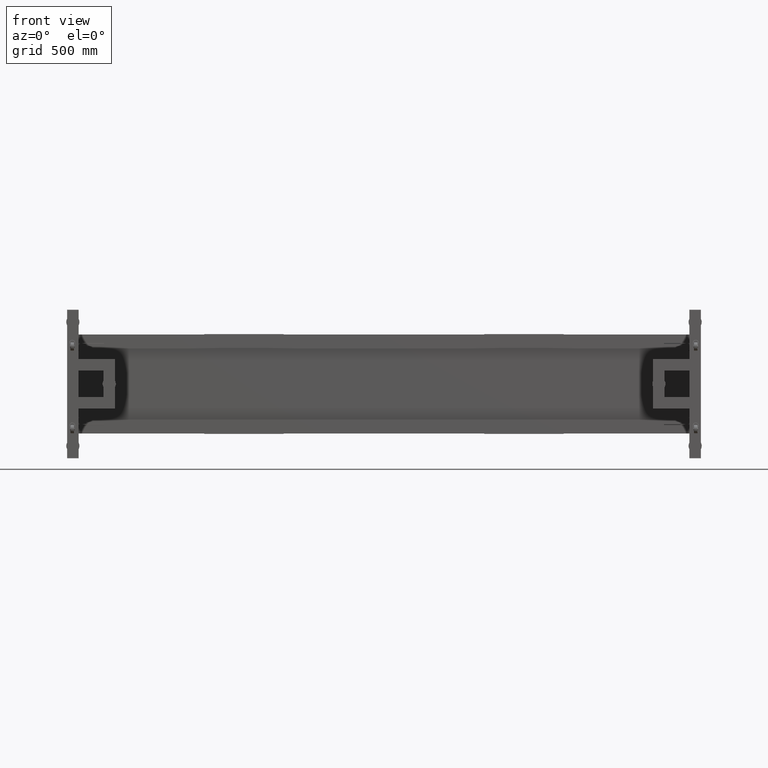
[diagram: clean part render]
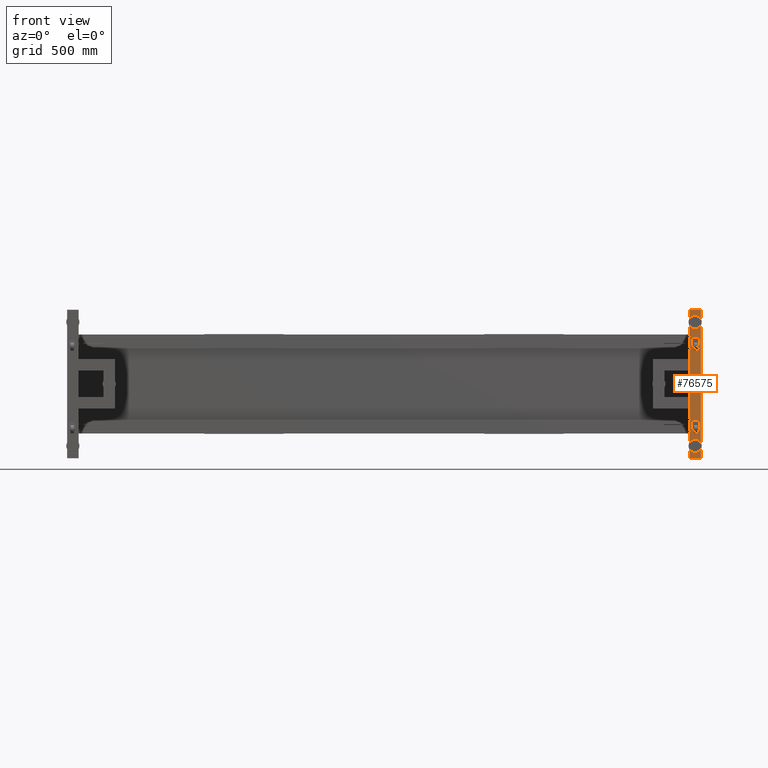
[diagram: same view with one face highlighted and labeled with its STEP entity id]
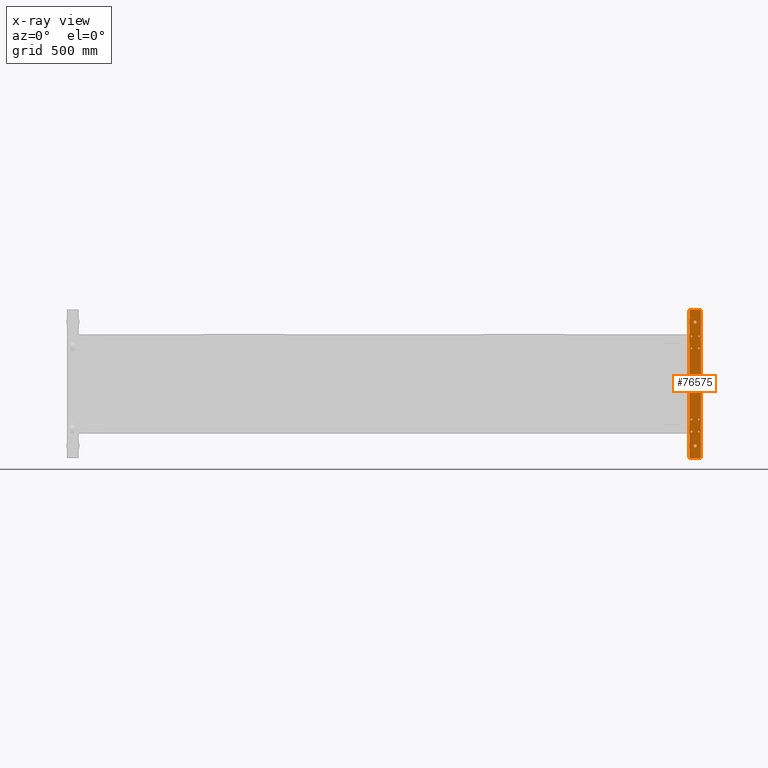
[diagram: x-ray of the same camera — body ghosted, the highlighted face saturated]
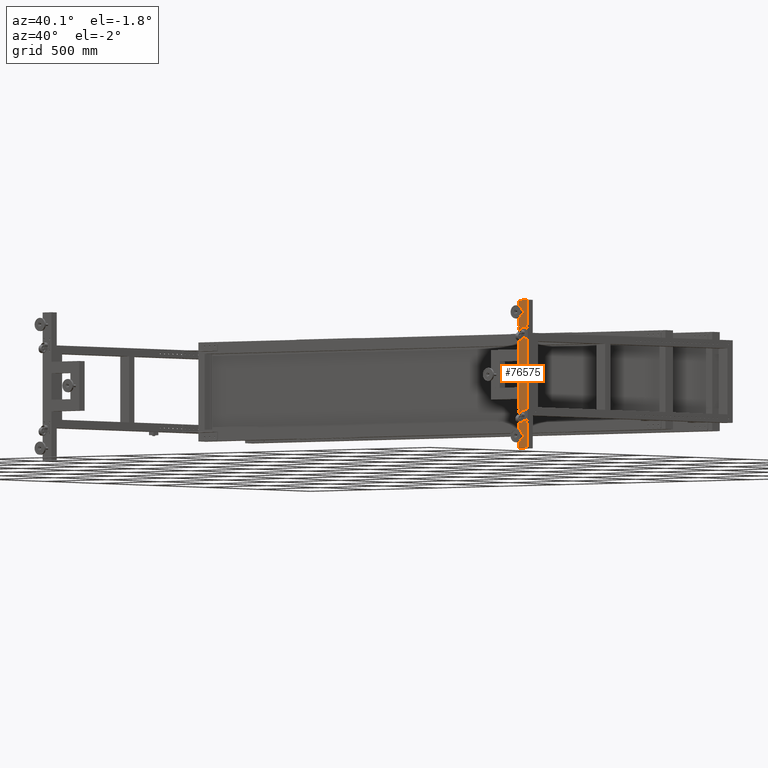
[diagram: same view with one face highlighted and labeled with its STEP entity id]
A machine part, front view. The second image highlights one B-rep face of the part: STEP entity #76575.
The next image is the same camera in x-ray: the body ghosted, the highlighted face saturated — about 0% of this face is hidden behind the body in this view.
A second angle (auxiliary view) of the same face is appended — the face is thin or edge-on in the first view.
In plain terms, the highlighted planar face has unit normal (0, -1, -0).
Its self-contained STEP definition (entity closure, byte-faithful):
#39 = CARTESIAN_POINT ( 'NONE',  ( 2444.327512562815173, -894.5589195979874830, -211.0000000000000853 ) ) ;
#70 = CARTESIAN_POINT ( 'NONE',  ( 2444.327512562815173, -894.5589195979874830, 220.9999999999999432 ) ) ;
#1530 = DIRECTION ( 'NONE',  ( 0.000000000000000000, 0.000000000000000000, 1.000000000000000000 ) ) ;
#1795 = CARTESIAN_POINT ( 'NONE',  ( 2444.327512562815173, -894.5589195979874830, -221.0000000000000853 ) ) ;
#2034 = DIRECTION ( 'NONE',  ( -2.216956027235894459E-16, 1.000000000000000000, -0.000000000000000000 ) ) ;
#2475 = EDGE_CURVE ( 'NONE', #28473, #42683, #34996, .T. ) ;
#2591 = CARTESIAN_POINT ( 'NONE',  ( 2489.327512562815627, -894.5589195979874830, -211.0000000000000853 ) ) ;
#2806 = ORIENTED_EDGE ( 'NONE', *, *, #3545, .T. ) ;
#2835 = VERTEX_POINT ( 'NONE', #44030 ) ;
#3024 = CARTESIAN_POINT ( 'NONE',  ( 2444.327512562815173, -894.5589195979874830, 288.9999999999999432 ) ) ;
#3078 = CARTESIAN_POINT ( 'NONE',  ( 2466.827512562815627, -894.5589195979874830, -375.0000000000000000 ) ) ;
#3545 = EDGE_CURVE ( 'NONE', #40839, #2835, #68035, .T. ) ;
#3566 = FACE_BOUND ( 'NONE', #13975, .T. ) ;
#4040 = CARTESIAN_POINT ( 'NONE',  ( 2444.327512562815173, -894.5589195979874830, 215.9999999999999432 ) ) ;
#4541 = DIRECTION ( 'NONE',  ( 0.000000000000000000, 0.000000000000000000, 1.000000000000000000 ) ) ;
#4797 = AXIS2_PLACEMENT_3D ( 'NONE', #29555, #49198, #17312 ) ;
#5035 = CARTESIAN_POINT ( 'NONE',  ( 2444.327512562815173, -894.5589195979874830, 283.9999999999999432 ) ) ;
#5446 = DIRECTION ( 'NONE',  ( -1.000000000000000000, -2.216956027235894459E-16, 0.000000000000000000 ) ) ;
#5572 = EDGE_LOOP ( 'NONE', ( #38175, #45359 ) ) ;
#5986 = CARTESIAN_POINT ( 'NONE',  ( 2501.827512562815173, -894.5589195979874830, -448.0000000000000568 ) ) ;
#6406 = AXIS2_PLACEMENT_3D ( 'NONE', #42576, #47517, #4541 ) ;
#6608 = CARTESIAN_POINT ( 'NONE',  ( 2431.827512562815627, -894.5589195979874830, -448.0000000000000568 ) ) ;
#8223 = VERTEX_POINT ( 'NONE', #80447 ) ;
#8230 = ORIENTED_EDGE ( 'NONE', *, *, #8757, .T. ) ;
#8286 = EDGE_CURVE ( 'NONE', #57817, #73506, #42556, .T. ) ;
#8725 = AXIS2_PLACEMENT_3D ( 'NONE', #3024, #34489, #78701 ) ;
#8757 = EDGE_CURVE ( 'NONE', #27176, #13733, #64636, .T. ) ;
#8892 = DIRECTION ( 'NONE',  ( 2.216956027235894459E-16, -1.000000000000000000, -0.000000000000000000 ) ) ;
#8994 = CARTESIAN_POINT ( 'NONE',  ( 2489.327512562815627, -894.5589195979874830, 288.9999999999999432 ) ) ;
#9078 = CIRCLE ( 'NONE', #48254, 5.000000000000004441 ) ;
#9327 = DIRECTION ( 'NONE',  ( -2.216956027235894459E-16, 1.000000000000000000, -0.000000000000000000 ) ) ;
#10235 = CIRCLE ( 'NONE', #55941, 5.000000000000004441 ) ;
#10353 = ORIENTED_EDGE ( 'NONE', *, *, #42674, .T. ) ;
#11193 = AXIS2_PLACEMENT_3D ( 'NONE', #68562, #12510, #55101 ) ;
#11590 = DIRECTION ( 'NONE',  ( 0.000000000000000000, 0.000000000000000000, -1.000000000000000000 ) ) ;
#11607 = DIRECTION ( 'NONE',  ( -2.216956027235894459E-16, 1.000000000000000000, -0.000000000000000000 ) ) ;
#12118 = EDGE_CURVE ( 'NONE', #22732, #8223, #52184, .T. ) ;
#12221 = DIRECTION ( 'NONE',  ( 0.000000000000000000, 0.000000000000000000, -1.000000000000000000 ) ) ;
#12268 = CARTESIAN_POINT ( 'NONE',  ( 2466.827512562815627, -894.5589195979874830, -366.0000000000000000 ) ) ;
#12438 = EDGE_CURVE ( 'NONE', #42683, #28473, #9078, .T. ) ;
#12510 = DIRECTION ( 'NONE',  ( -2.216956027235894459E-16, 1.000000000000000000, -0.000000000000000000 ) ) ;
#12577 = EDGE_CURVE ( 'NONE', #39934, #57526, #61385, .T. ) ;
#12721 = CARTESIAN_POINT ( 'NONE',  ( 2489.327512562815627, -894.5589195979874830, -289.0000000000000568 ) ) ;
#12804 = CARTESIAN_POINT ( 'NONE',  ( 2444.327512562815173, -894.5589195979874830, -216.0000000000000853 ) ) ;
#13733 = VERTEX_POINT ( 'NONE', #55976 ) ;
#13975 = EDGE_LOOP ( 'NONE', ( #30143, #62651 ) ) ;
#14671 = DIRECTION ( 'NONE',  ( 0.000000000000000000, 0.000000000000000000, 1.000000000000000000 ) ) ;
#14829 = AXIS2_PLACEMENT_3D ( 'NONE', #39191, #9327, #14671 ) ;
#14946 = LINE ( 'NONE', #15761, #69917 ) ;
#15586 = ORIENTED_EDGE ( 'NONE', *, *, #61387, .T. ) ;
#15746 = AXIS2_PLACEMENT_3D ( 'NONE', #74177, #23477, #11590 ) ;
#15761 = CARTESIAN_POINT ( 'NONE',  ( 2501.827512562815173, -894.5589195979874830, -448.0000000000000568 ) ) ;
#15774 = DIRECTION ( 'NONE',  ( -2.216956027235894459E-16, 1.000000000000000000, -0.000000000000000000 ) ) ;
#16331 = DIRECTION ( 'NONE',  ( 0.000000000000000000, 0.000000000000000000, 1.000000000000000000 ) ) ;
#16738 = AXIS2_PLACEMENT_3D ( 'NONE', #69095, #57225, #12221 ) ;
#17312 = DIRECTION ( 'NONE',  ( 0.000000000000000000, 0.000000000000000000, -1.000000000000000000 ) ) ;
#17751 = CARTESIAN_POINT ( 'NONE',  ( 2489.327512562815627, -894.5589195979874830, 283.9999999999999432 ) ) ;
#18068 = AXIS2_PLACEMENT_3D ( 'NONE', #76379, #71891, #1530 ) ;
#19030 = ORIENTED_EDGE ( 'NONE', *, *, #61449, .T. ) ;
#19190 = CIRCLE ( 'NONE', #4797, 9.000000000000007105 ) ;
#19504 = ORIENTED_EDGE ( 'NONE', *, *, #80909, .T. ) ;
#20697 = DIRECTION ( 'NONE',  ( 0.000000000000000000, 0.000000000000000000, 1.000000000000000000 ) ) ;
#21641 = ORIENTED_EDGE ( 'NONE', *, *, #12438, .T. ) ;
#22712 = ORIENTED_EDGE ( 'NONE', *, *, #72568, .T. ) ;
#22732 = VERTEX_POINT ( 'NONE', #12268 ) ;
#23477 = DIRECTION ( 'NONE',  ( -2.216956027235894459E-16, 1.000000000000000000, -0.000000000000000000 ) ) ;
#24350 = CARTESIAN_POINT ( 'NONE',  ( 2444.327512562815173, -894.5589195979874830, -294.0000000000000568 ) ) ;
#24855 = AXIS2_PLACEMENT_3D ( 'NONE', #37562, #68671, #31012 ) ;
#25941 = ORIENTED_EDGE ( 'NONE', *, *, #2475, .T. ) ;
#26807 = EDGE_LOOP ( 'NONE', ( #21641, #25941 ) ) ;
#26971 = CARTESIAN_POINT ( 'NONE',  ( 2489.327512562815627, -894.5589195979874830, -294.0000000000000568 ) ) ;
#27176 = VERTEX_POINT ( 'NONE', #77451 ) ;
#27307 = DIRECTION ( 'NONE',  ( -0.000000000000000000, 0.000000000000000000, -1.000000000000000000 ) ) ;
#27410 = DIRECTION ( 'NONE',  ( 0.000000000000000000, 0.000000000000000000, -1.000000000000000000 ) ) ;
#27709 = FACE_BOUND ( 'NONE', #65851, .T. ) ;
#28429 = DIRECTION ( 'NONE',  ( -2.216956027235894459E-16, 1.000000000000000000, -0.000000000000000000 ) ) ;
#28473 = VERTEX_POINT ( 'NONE', #33768 ) ;
#28515 = FACE_BOUND ( 'NONE', #5572, .T. ) ;
#28697 = AXIS2_PLACEMENT_3D ( 'NONE', #72384, #36328, #16331 ) ;
#29295 = VERTEX_POINT ( 'NONE', #5986 ) ;
#29555 = CARTESIAN_POINT ( 'NONE',  ( 2466.827512562815627, -894.5589195979874830, 374.9999999999999432 ) ) ;
#29912 = LINE ( 'NONE', #47153, #40123 ) ;
#30143 = ORIENTED_EDGE ( 'NONE', *, *, #56376, .T. ) ;
#30323 = VERTEX_POINT ( 'NONE', #63001 ) ;
#31012 = DIRECTION ( 'NONE',  ( 0.000000000000000000, 0.000000000000000000, 1.000000000000000000 ) ) ;
#31563 = CIRCLE ( 'NONE', #38110, 5.000000000000004441 ) ;
#32195 = CARTESIAN_POINT ( 'NONE',  ( 2489.327512562815627, -894.5589195979874830, -216.0000000000000853 ) ) ;
#32752 = AXIS2_PLACEMENT_3D ( 'NONE', #71831, #15774, #59538 ) ;
#32997 = FACE_BOUND ( 'NONE', #35489, .T. ) ;
#33319 = DIRECTION ( 'NONE',  ( 0.000000000000000000, 0.000000000000000000, 1.000000000000000000 ) ) ;
#33412 = FACE_BOUND ( 'NONE', #36689, .T. ) ;
#33768 = CARTESIAN_POINT ( 'NONE',  ( 2489.327512562815627, -894.5589195979874830, 293.9999999999999432 ) ) ;
#33903 = DIRECTION ( 'NONE',  ( 0.000000000000000000, 0.000000000000000000, -1.000000000000000000 ) ) ;
#33984 = AXIS2_PLACEMENT_3D ( 'NONE', #12721, #51192, #63852 ) ;
#34235 = FACE_BOUND ( 'NONE', #39181, .T. ) ;
#34489 = DIRECTION ( 'NONE',  ( -2.216956027235894459E-16, 1.000000000000000000, -0.000000000000000000 ) ) ;
#34996 = CIRCLE ( 'NONE', #16738, 5.000000000000004441 ) ;
#35130 = EDGE_CURVE ( 'NONE', #2835, #40839, #59649, .T. ) ;
#35228 = CARTESIAN_POINT ( 'NONE',  ( 2489.327512562815627, -894.5589195979874830, 220.9999999999999432 ) ) ;
#35247 = DIRECTION ( 'NONE',  ( -1.000000000000000000, -2.216956027235894459E-16, 0.000000000000000000 ) ) ;
#35489 = EDGE_LOOP ( 'NONE', ( #19504, #22712 ) ) ;
#35665 = VERTEX_POINT ( 'NONE', #5035 ) ;
#35667 = ORIENTED_EDGE ( 'NONE', *, *, #8286, .T. ) ;
#36328 = DIRECTION ( 'NONE',  ( -2.216956027235894459E-16, 1.000000000000000000, -0.000000000000000000 ) ) ;
#36531 = DIRECTION ( 'NONE',  ( 0.000000000000000000, 0.000000000000000000, 1.000000000000000000 ) ) ;
#36689 = EDGE_LOOP ( 'NONE', ( #40137, #15586 ) ) ;
#37562 = CARTESIAN_POINT ( 'NONE',  ( 2489.327512562815627, -894.5589195979874830, -289.0000000000000568 ) ) ;
#37726 = CARTESIAN_POINT ( 'NONE',  ( 2444.327512562815173, -894.5589195979874830, 210.9999999999999716 ) ) ;
#38110 = AXIS2_PLACEMENT_3D ( 'NONE', #32195, #80510, #75982 ) ;
#38175 = ORIENTED_EDGE ( 'NONE', *, *, #51402, .T. ) ;
#39181 = EDGE_LOOP ( 'NONE', ( #8230, #19030 ) ) ;
#39191 = CARTESIAN_POINT ( 'NONE',  ( 2444.327512562815173, -894.5589195979874830, -289.0000000000000568 ) ) ;
#39934 = VERTEX_POINT ( 'NONE', #64105 ) ;
#40123 = VECTOR ( 'NONE', #35247, 1000.000000000000000 ) ;
#40137 = ORIENTED_EDGE ( 'NONE', *, *, #69961, .T. ) ;
#40393 = FACE_BOUND ( 'NONE', #74412, .T. ) ;
#40839 = VERTEX_POINT ( 'NONE', #35228 ) ;
#40933 = CIRCLE ( 'NONE', #14829, 5.000000000000004441 ) ;
#41276 = AXIS2_PLACEMENT_3D ( 'NONE', #51865, #8892, #27307 ) ;
#42185 = VERTEX_POINT ( 'NONE', #53486 ) ;
#42368 = AXIS2_PLACEMENT_3D ( 'NONE', #64263, #71230, #52426 ) ;
#42556 = CIRCLE ( 'NONE', #11193, 5.000000000000004441 ) ;
#42576 = CARTESIAN_POINT ( 'NONE',  ( 2466.827512562815627, -894.5589195979874830, -375.0000000000000000 ) ) ;
#42674 = EDGE_CURVE ( 'NONE', #62860, #72831, #72980, .T. ) ;
#42683 = VERTEX_POINT ( 'NONE', #17751 ) ;
#43975 = CIRCLE ( 'NONE', #8725, 5.000000000000004441 ) ;
#44030 = CARTESIAN_POINT ( 'NONE',  ( 2489.327512562815627, -894.5589195979874830, 210.9999999999999716 ) ) ;
#44411 = CARTESIAN_POINT ( 'NONE',  ( 2431.827512562815627, -894.5589195979874830, -448.0000000000000568 ) ) ;
#45359 = ORIENTED_EDGE ( 'NONE', *, *, #12118, .T. ) ;
#45369 = DIRECTION ( 'NONE',  ( -2.216956027235894459E-16, 1.000000000000000000, -0.000000000000000000 ) ) ;
#46274 = EDGE_CURVE ( 'NONE', #73506, #57817, #64504, .T. ) ;
#47153 = CARTESIAN_POINT ( 'NONE',  ( 2501.827512562815173, -894.5589195979874830, -448.0000000000000568 ) ) ;
#47517 = DIRECTION ( 'NONE',  ( -2.216956027235894459E-16, 1.000000000000000000, -0.000000000000000000 ) ) ;
#48254 = AXIS2_PLACEMENT_3D ( 'NONE', #8994, #2034, #27410 ) ;
#48589 = VECTOR ( 'NONE', #5446, 1000.000000000000000 ) ;
#48722 = CARTESIAN_POINT ( 'NONE',  ( 2501.827512562815173, -894.5589195979874830, 447.9999999999999432 ) ) ;
#48832 = VECTOR ( 'NONE', #56523, 1000.000000000000000 ) ;
#48925 = EDGE_CURVE ( 'NONE', #30323, #60323, #70326, .T. ) ;
#49198 = DIRECTION ( 'NONE',  ( -2.216956027235894459E-16, 1.000000000000000000, -0.000000000000000000 ) ) ;
#51192 = DIRECTION ( 'NONE',  ( -2.216956027235894459E-16, 1.000000000000000000, -0.000000000000000000 ) ) ;
#51402 = EDGE_CURVE ( 'NONE', #8223, #22732, #71799, .T. ) ;
#51805 = CARTESIAN_POINT ( 'NONE',  ( 2431.827512562815627, -894.5589195979874830, 447.9999999999999432 ) ) ;
#51865 = CARTESIAN_POINT ( 'NONE',  ( 2501.827512562815173, -894.5589195979874830, -448.0000000000000568 ) ) ;
#52152 = EDGE_CURVE ( 'NONE', #78971, #63176, #58830, .T. ) ;
#52184 = CIRCLE ( 'NONE', #6406, 9.000000000000007105 ) ;
#52426 = DIRECTION ( 'NONE',  ( 0.000000000000000000, 0.000000000000000000, -1.000000000000000000 ) ) ;
#52445 = ORIENTED_EDGE ( 'NONE', *, *, #67343, .T. ) ;
#52496 = EDGE_CURVE ( 'NONE', #63176, #78971, #60181, .T. ) ;
#52812 = CARTESIAN_POINT ( 'NONE',  ( 2489.327512562815627, -894.5589195979874830, -284.0000000000000568 ) ) ;
#53486 = CARTESIAN_POINT ( 'NONE',  ( 2444.327512562815173, -894.5589195979874830, 293.9999999999999432 ) ) ;
#53521 = AXIS2_PLACEMENT_3D ( 'NONE', #3078, #28429, #33319 ) ;
#53864 = EDGE_LOOP ( 'NONE', ( #67774, #2806 ) ) ;
#53959 = DIRECTION ( 'NONE',  ( 0.000000000000000000, 0.000000000000000000, -1.000000000000000000 ) ) ;
#53989 = CIRCLE ( 'NONE', #69620, 5.000000000000004441 ) ;
#55101 = DIRECTION ( 'NONE',  ( 0.000000000000000000, 0.000000000000000000, -1.000000000000000000 ) ) ;
#55887 = VERTEX_POINT ( 'NONE', #39 ) ;
#55941 = AXIS2_PLACEMENT_3D ( 'NONE', #12804, #11607, #36531 ) ;
#55976 = CARTESIAN_POINT ( 'NONE',  ( 2466.827512562815627, -894.5589195979874830, 383.9999999999999432 ) ) ;
#56125 = LINE ( 'NONE', #6608, #48832 ) ;
#56376 = EDGE_CURVE ( 'NONE', #57526, #39934, #40933, .T. ) ;
#56523 = DIRECTION ( 'NONE',  ( 0.000000000000000000, 0.000000000000000000, 1.000000000000000000 ) ) ;
#57225 = DIRECTION ( 'NONE',  ( -2.216956027235894459E-16, 1.000000000000000000, -0.000000000000000000 ) ) ;
#57526 = VERTEX_POINT ( 'NONE', #24350 ) ;
#57817 = VERTEX_POINT ( 'NONE', #37726 ) ;
#57832 = ORIENTED_EDGE ( 'NONE', *, *, #73550, .F. ) ;
#58366 = ORIENTED_EDGE ( 'NONE', *, *, #46274, .T. ) ;
#58830 = CIRCLE ( 'NONE', #33984, 5.000000000000004441 ) ;
#59222 = FACE_OUTER_BOUND ( 'NONE', #62935, .T. ) ;
#59329 = AXIS2_PLACEMENT_3D ( 'NONE', #4040, #78111, #53959 ) ;
#59538 = DIRECTION ( 'NONE',  ( 0.000000000000000000, 0.000000000000000000, -1.000000000000000000 ) ) ;
#59649 = CIRCLE ( 'NONE', #67517, 5.000000000000004441 ) ;
#59742 = VERTEX_POINT ( 'NONE', #44411 ) ;
#59811 = EDGE_CURVE ( 'NONE', #29295, #62860, #14946, .T. ) ;
#60135 = CIRCLE ( 'NONE', #15746, 5.000000000000004441 ) ;
#60181 = CIRCLE ( 'NONE', #24855, 5.000000000000004441 ) ;
#60323 = VERTEX_POINT ( 'NONE', #2591 ) ;
#61335 = VERTEX_POINT ( 'NONE', #1795 ) ;
#61385 = CIRCLE ( 'NONE', #28697, 5.000000000000004441 ) ;
#61387 = EDGE_CURVE ( 'NONE', #42185, #35665, #43975, .T. ) ;
#61449 = EDGE_CURVE ( 'NONE', #13733, #27176, #19190, .T. ) ;
#61503 = CARTESIAN_POINT ( 'NONE',  ( 2501.827512562815173, -894.5589195979874830, 447.9999999999999432 ) ) ;
#62651 = ORIENTED_EDGE ( 'NONE', *, *, #12577, .T. ) ;
#62655 = EDGE_LOOP ( 'NONE', ( #80441, #52445 ) ) ;
#62860 = VERTEX_POINT ( 'NONE', #48722 ) ;
#62935 = EDGE_LOOP ( 'NONE', ( #10353, #57832, #78620, #74605 ) ) ;
#63001 = CARTESIAN_POINT ( 'NONE',  ( 2489.327512562815627, -894.5589195979874830, -221.0000000000000853 ) ) ;
#63176 = VERTEX_POINT ( 'NONE', #26971 ) ;
#63852 = DIRECTION ( 'NONE',  ( 0.000000000000000000, 0.000000000000000000, 1.000000000000000000 ) ) ;
#64105 = CARTESIAN_POINT ( 'NONE',  ( 2444.327512562815173, -894.5589195979874830, -284.0000000000000568 ) ) ;
#64128 = FACE_BOUND ( 'NONE', #26807, .T. ) ;
#64263 = CARTESIAN_POINT ( 'NONE',  ( 2466.827512562815627, -894.5589195979874830, 374.9999999999999432 ) ) ;
#64504 = CIRCLE ( 'NONE', #59329, 5.000000000000004441 ) ;
#64636 = CIRCLE ( 'NONE', #42368, 9.000000000000007105 ) ;
#64935 = PLANE ( 'NONE',  #41276 ) ;
#65010 = CARTESIAN_POINT ( 'NONE',  ( 2489.327512562815627, -894.5589195979874830, 215.9999999999999432 ) ) ;
#65741 = FACE_BOUND ( 'NONE', #53864, .T. ) ;
#65851 = EDGE_LOOP ( 'NONE', ( #35667, #58366 ) ) ;
#67343 = EDGE_CURVE ( 'NONE', #60323, #30323, #31563, .T. ) ;
#67517 = AXIS2_PLACEMENT_3D ( 'NONE', #65010, #45369, #33903 ) ;
#67774 = ORIENTED_EDGE ( 'NONE', *, *, #35130, .T. ) ;
#67786 = CARTESIAN_POINT ( 'NONE',  ( 2444.327512562815173, -894.5589195979874830, -216.0000000000000853 ) ) ;
#68035 = CIRCLE ( 'NONE', #32752, 5.000000000000004441 ) ;
#68562 = CARTESIAN_POINT ( 'NONE',  ( 2444.327512562815173, -894.5589195979874830, 215.9999999999999432 ) ) ;
#68671 = DIRECTION ( 'NONE',  ( -2.216956027235894459E-16, 1.000000000000000000, -0.000000000000000000 ) ) ;
#69095 = CARTESIAN_POINT ( 'NONE',  ( 2489.327512562815627, -894.5589195979874830, 288.9999999999999432 ) ) ;
#69620 = AXIS2_PLACEMENT_3D ( 'NONE', #67786, #79275, #79675 ) ;
#69917 = VECTOR ( 'NONE', #20697, 1000.000000000000000 ) ;
#69961 = EDGE_CURVE ( 'NONE', #35665, #42185, #60135, .T. ) ;
#70326 = CIRCLE ( 'NONE', #18068, 5.000000000000004441 ) ;
#71230 = DIRECTION ( 'NONE',  ( -2.216956027235894459E-16, 1.000000000000000000, -0.000000000000000000 ) ) ;
#71490 = FACE_BOUND ( 'NONE', #62655, .T. ) ;
#71799 = CIRCLE ( 'NONE', #53521, 9.000000000000007105 ) ;
#71831 = CARTESIAN_POINT ( 'NONE',  ( 2489.327512562815627, -894.5589195979874830, 215.9999999999999432 ) ) ;
#71891 = DIRECTION ( 'NONE',  ( -2.216956027235894459E-16, 1.000000000000000000, -0.000000000000000000 ) ) ;
#72384 = CARTESIAN_POINT ( 'NONE',  ( 2444.327512562815173, -894.5589195979874830, -289.0000000000000568 ) ) ;
#72568 = EDGE_CURVE ( 'NONE', #55887, #61335, #53989, .T. ) ;
#72831 = VERTEX_POINT ( 'NONE', #51805 ) ;
#72980 = LINE ( 'NONE', #61503, #48589 ) ;
#73446 = ORIENTED_EDGE ( 'NONE', *, *, #52496, .T. ) ;
#73506 = VERTEX_POINT ( 'NONE', #70 ) ;
#73550 = EDGE_CURVE ( 'NONE', #59742, #72831, #56125, .T. ) ;
#74177 = CARTESIAN_POINT ( 'NONE',  ( 2444.327512562815173, -894.5589195979874830, 288.9999999999999432 ) ) ;
#74412 = EDGE_LOOP ( 'NONE', ( #73446, #79009 ) ) ;
#74605 = ORIENTED_EDGE ( 'NONE', *, *, #59811, .T. ) ;
#75982 = DIRECTION ( 'NONE',  ( 0.000000000000000000, 0.000000000000000000, 1.000000000000000000 ) ) ;
#76379 = CARTESIAN_POINT ( 'NONE',  ( 2489.327512562815627, -894.5589195979874830, -216.0000000000000853 ) ) ;
#76575 = ADVANCED_FACE ( 'NONE', ( #64128, #3566, #32997, #28515, #33412, #27709, #40393, #65741, #71490, #34235, #59222 ), #64935, .T. ) ;
#77451 = CARTESIAN_POINT ( 'NONE',  ( 2466.827512562815627, -894.5589195979874830, 365.9999999999999432 ) ) ;
#77504 = EDGE_CURVE ( 'NONE', #29295, #59742, #29912, .T. ) ;
#78111 = DIRECTION ( 'NONE',  ( -2.216956027235894459E-16, 1.000000000000000000, -0.000000000000000000 ) ) ;
#78620 = ORIENTED_EDGE ( 'NONE', *, *, #77504, .F. ) ;
#78701 = DIRECTION ( 'NONE',  ( 0.000000000000000000, 0.000000000000000000, -1.000000000000000000 ) ) ;
#78971 = VERTEX_POINT ( 'NONE', #52812 ) ;
#79009 = ORIENTED_EDGE ( 'NONE', *, *, #52152, .T. ) ;
#79275 = DIRECTION ( 'NONE',  ( -2.216956027235894459E-16, 1.000000000000000000, -0.000000000000000000 ) ) ;
#79675 = DIRECTION ( 'NONE',  ( 0.000000000000000000, 0.000000000000000000, 1.000000000000000000 ) ) ;
#80441 = ORIENTED_EDGE ( 'NONE', *, *, #48925, .T. ) ;
#80447 = CARTESIAN_POINT ( 'NONE',  ( 2466.827512562815627, -894.5589195979874830, -384.0000000000000000 ) ) ;
#80510 = DIRECTION ( 'NONE',  ( -2.216956027235894459E-16, 1.000000000000000000, -0.000000000000000000 ) ) ;
#80909 = EDGE_CURVE ( 'NONE', #61335, #55887, #10235, .T. ) ;